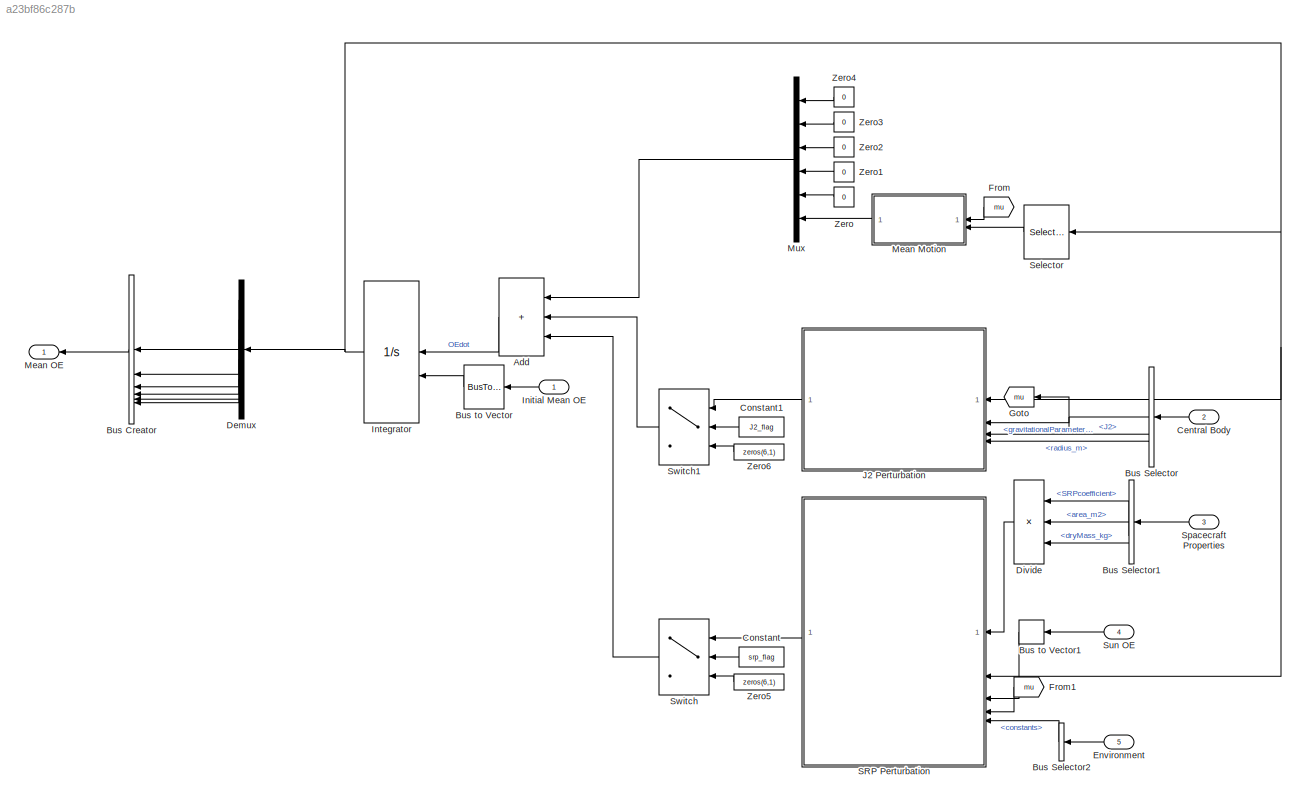
MODEL slx_a23bf86c287b
KIND model
CONFIG AbsTol = auto
CONFIG EnableMultiTasking = off
CONFIG FixedStep = dt
CONFIG MaxStep = max_step_size
CONFIG MinStep = auto
CONFIG RelTol = relative_tolerance
CONFIG SampleTimeConstraint = Unconstrained
CONFIG SolverName = ode4
CONFIG StartTime = 0.0
CONFIG StopTime = 10.0
BLOCK [Sum] Add
  IconShape = rectangular
  Inputs = +++
BLOCK [BusCreator] Bus Creator
  DisplayOption = bar
  InheritFromInputs = off
  Inputs = 6
  NonVirtualBus = on
  OutDataTypeStr = Bus: meanOrbitElements
BLOCK [BusSelector] Bus Selector
  OutputSignals = gravitationalParameter_m3_s2,J2,radius_m
BLOCK [BusSelector] Bus Selector1
  OutputSignals = SRPcoefficient,area_m2,dryMass_kg
BLOCK [BusSelector] Bus Selector2
  OutputSignals = constants
BLOCK [BusToVector] Bus to Vector
BLOCK [BusToVector] Bus to Vector1
BLOCK [Inport] Central Body
  OutDataTypeStr = Bus: planetProperties
  Port = 2
BLOCK [Constant] Constant
  Value = srp_flag
BLOCK [Constant] Constant1
  Value = J2_flag
BLOCK [Demux] Demux
  Outputs = 6
BLOCK [Product] Divide
  Inputs = **/
BLOCK [Inport] Environment
  OutDataTypeStr = Bus: environmentBus
  Port = 5
BLOCK [From] From
  GotoTag = mu
BLOCK [From] From1
  GotoTag = mu
BLOCK [Goto] Goto
  GotoTag = mu
BLOCK [Inport] Initial Mean OE
  OutDataTypeStr = Bus: meanOrbitElements
BLOCK [Integrator] Integrator
  InitialConditionSource = external
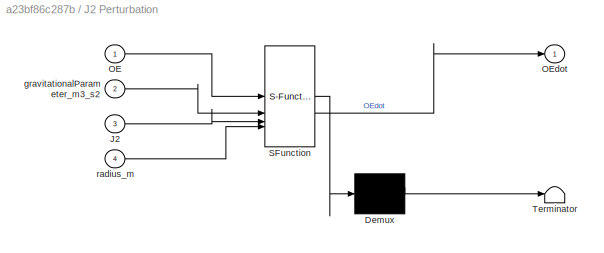
BLOCK [SubSystem] J2 Perturbation
  ErrorFcn = Stateflow.Translate.translate
  LibrarySourceBlock = simulink/User-Defined\nFunctions/MATLAB Function
  PermitHierarchicalResolution = ExplicitOnly
  SFBlockType = MATLAB Function
  TreatAsAtomicUnit = on
BLOCK [Demux] J2 Perturbation/ Demux 
  Outputs = 1
BLOCK [S-Function] J2 Perturbation/ SFunction 
  EnableBusSupport = on
  FunctionName = sf_sfun
  PortCounts = [4 2]
  SFcnIsStateOwnerBlock = off
  SFunctionDeploymentMode = off
  Tag = Stateflow S-Function 1
BLOCK [Terminator] J2 Perturbation/ Terminator 
BLOCK [Inport] J2 Perturbation/J2
  Port = 3
BLOCK [Inport] J2 Perturbation/OE
BLOCK [Outport] J2 Perturbation/OEdot
BLOCK [Inport] J2 Perturbation/gravitationalParameter_m3_s2
  Port = 2
BLOCK [Inport] J2 Perturbation/radius_m
  Port = 4
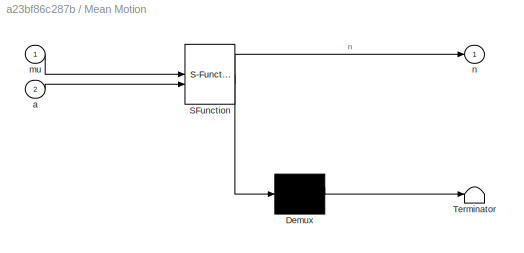
BLOCK [SubSystem] Mean Motion
  ErrorFcn = Stateflow.Translate.translate
  LibrarySourceBlock = simulink/User-Defined\nFunctions/MATLAB Function
  PermitHierarchicalResolution = ExplicitOnly
  SFBlockType = MATLAB Function
  TreatAsAtomicUnit = on
BLOCK [Demux] Mean Motion/ Demux 
  Outputs = 1
BLOCK [S-Function] Mean Motion/ SFunction 
  EnableBusSupport = on
  FunctionName = sf_sfun
  PortCounts = [2 2]
  SFcnIsStateOwnerBlock = off
  SFunctionDeploymentMode = off
  Tag = Stateflow S-Function 2
BLOCK [Terminator] Mean Motion/ Terminator 
BLOCK [Inport] Mean Motion/a
  Port = 2
BLOCK [Inport] Mean Motion/mu
BLOCK [Outport] Mean Motion/n
BLOCK [Outport] Mean OE
  OutDataTypeStr = Bus: meanOrbitElements
BLOCK [Mux] Mux
  DisplayOption = bar
  Inputs = 6
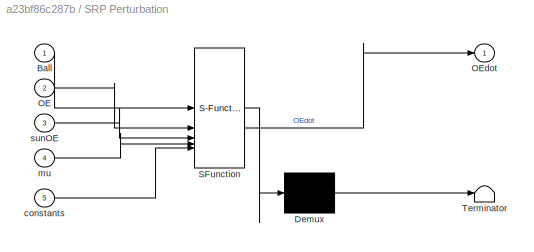
BLOCK [SubSystem] SRP Perturbation
  ErrorFcn = Stateflow.Translate.translate
  LibrarySourceBlock = simulink/User-Defined\nFunctions/MATLAB Function
  PermitHierarchicalResolution = ExplicitOnly
  SFBlockType = MATLAB Function
  TreatAsAtomicUnit = on
BLOCK [Demux] SRP Perturbation/ Demux 
  Outputs = 1
BLOCK [S-Function] SRP Perturbation/ SFunction 
  EnableBusSupport = on
  FunctionName = sf_sfun
  PortCounts = [5 2]
  SFcnIsStateOwnerBlock = off
  SFunctionDeploymentMode = off
  Tag = Stateflow S-Function 3
BLOCK [Terminator] SRP Perturbation/ Terminator 
BLOCK [Inport] SRP Perturbation/Ball
BLOCK [Inport] SRP Perturbation/OE
  Port = 2
BLOCK [Outport] SRP Perturbation/OEdot
BLOCK [Inport] SRP Perturbation/constants
  Port = 5
BLOCK [Inport] SRP Perturbation/mu
  Port = 4
BLOCK [Inport] SRP Perturbation/sunOE
  Port = 3
BLOCK [Selector] Selector
  IndexOptions = Index vector (dialog)
  Indices = [1]
  InputPortWidth = 6
  OutputSizes = 1
BLOCK [Inport] Spacecraft Properties
  OutDataTypeStr = Bus: properties
  Port = 3
BLOCK [Inport] Sun OE
  OutDataTypeStr = Bus: osculatingOrbitElements
  Port = 4
BLOCK [Switch] Switch
  Criteria = u2 > Threshold
  InputSameDT = off
  SaturateOnIntegerOverflow = off
BLOCK [Switch] Switch1
  Criteria = u2 > Threshold
  InputSameDT = off
  SaturateOnIntegerOverflow = off
BLOCK [Constant] Zero
  OutDataTypeStr = Inherit: Inherit via back propagation
  Value = 0
BLOCK [Constant] Zero1
  OutDataTypeStr = Inherit: Inherit via back propagation
  Value = 0
BLOCK [Constant] Zero2
  OutDataTypeStr = Inherit: Inherit via back propagation
  Value = 0
BLOCK [Constant] Zero3
  OutDataTypeStr = Inherit: Inherit via back propagation
  Value = 0
BLOCK [Constant] Zero4
  OutDataTypeStr = Inherit: Inherit via back propagation
  Value = 0
BLOCK [Constant] Zero5
  OutDataTypeStr = Inherit: Inherit via back propagation
  Value = zeros(6,1)
BLOCK [Constant] Zero6
  OutDataTypeStr = Inherit: Inherit via back propagation
  Value = zeros(6,1)
LINE Add:1 -> Integrator:1
LINE Bus Creator:1 -> Mean OE:1
LINE Bus Selector1:1 -> Divide:1
LINE Bus Selector1:2 -> Divide:2
LINE Bus Selector1:3 -> Divide:3
LINE Bus Selector2:1 -> SRP Perturbation:5
NET Bus Selector:1 -> Goto:1, J2 Perturbation:2
LINE Bus Selector:2 -> J2 Perturbation:3
LINE Bus Selector:3 -> J2 Perturbation:4
LINE Bus to Vector1:1 -> SRP Perturbation:3
LINE Bus to Vector:1 -> Integrator:2
LINE Central Body:1 -> Bus Selector:1
LINE Constant1:1 -> Switch1:2
LINE Constant:1 -> Switch:2
LINE Demux:1 -> Bus Creator:1
LINE Demux:2 -> Bus Creator:2
LINE Demux:3 -> Bus Creator:3
LINE Demux:4 -> Bus Creator:4
LINE Demux:5 -> Bus Creator:5
LINE Demux:6 -> Bus Creator:6
LINE Divide:1 -> SRP Perturbation:1
LINE Environment:1 -> Bus Selector2:1
LINE From1:1 -> SRP Perturbation:4
LINE From:1 -> Mean Motion:1
LINE Initial Mean OE:1 -> Bus to Vector:1
NET Integrator:1 -> Demux:1, J2 Perturbation:1, SRP Perturbation:2, Selector:1
LINE J2 Perturbation:1 -> Switch1:1
LINE Mean Motion:1 -> Mux:6
LINE Mux:1 -> Add:1
LINE SRP Perturbation:1 -> Switch:1
LINE Selector:1 -> Mean Motion:2
LINE Spacecraft Properties:1 -> Bus Selector1:1
LINE Sun OE:1 -> Bus to Vector1:1
LINE Switch1:1 -> Add:2
LINE Switch:1 -> Add:3
LINE Zero1:1 -> Mux:4
LINE Zero2:1 -> Mux:3
LINE Zero3:1 -> Mux:2
LINE Zero4:1 -> Mux:1
LINE Zero5:1 -> Switch:3
LINE Zero6:1 -> Switch1:3
LINE Zero:1 -> Mux:5
note: NET lines group one-source signal fan-out (src -> all destinations, sorted); 1:1 wires keep LINE
CHART J2 Perturbation states=1 transitions=1
  STATE_LABEL 'eML_blk_kernel()'
  STATE_LABEL 'SCRIPT:\nfunction OEdot = computeJ2meanPerturbation(OE,gravitationalParameter_m3_s2,J2,radius_m)\nOEdot = computeJ2meanPerturbation(OE,gravitationalParameter_m3_s2,J2,radius_m);\nend'
CHART Mean Motion states=1 transitions=1
  STATE_LABEL 'eML_blk_kernel()'
  STATE_LABEL 'SCRIPT:\nfunction n = meanMotion (mu, a)\nn = meanMotion (mu, a);\nend\n'
CHART SRP Perturbation states=1 transitions=1
  STATE_LABEL 'eML_blk_kernel()'
  STATE_LABEL 'SCRIPT:\nfunction OEdot = computeSRPmeanPerturbation(Ball, OE, sunOE, mu, constants)\nOEdot = computeSRPmeanPerturbation(Ball, OE, sunOE, mu, constants);\nend\n'
CHART  states=0 transitions=0
CHART  states=0 transitions=0
CHART  states=0 transitions=0
